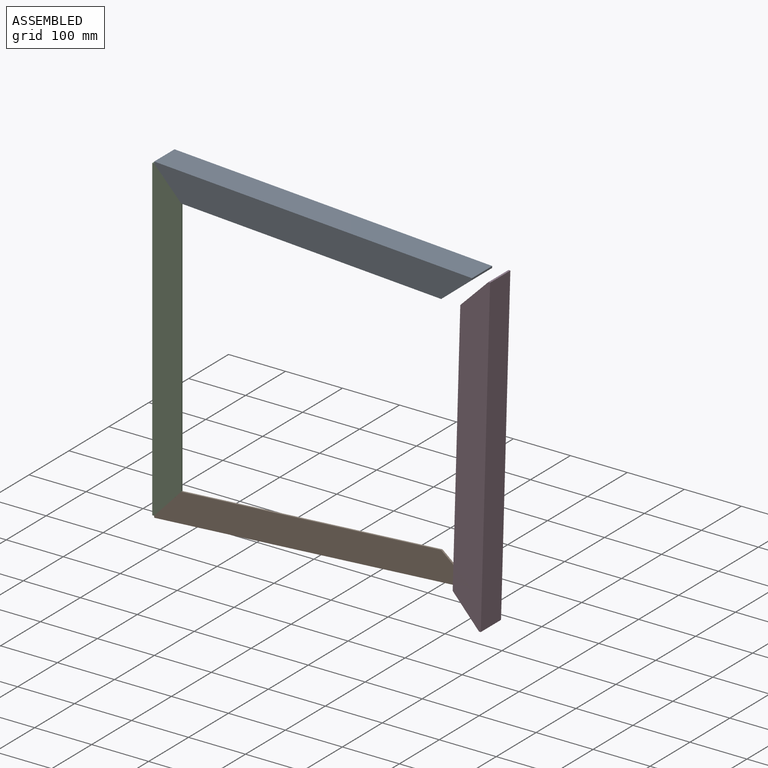
[diagram: assembled view]
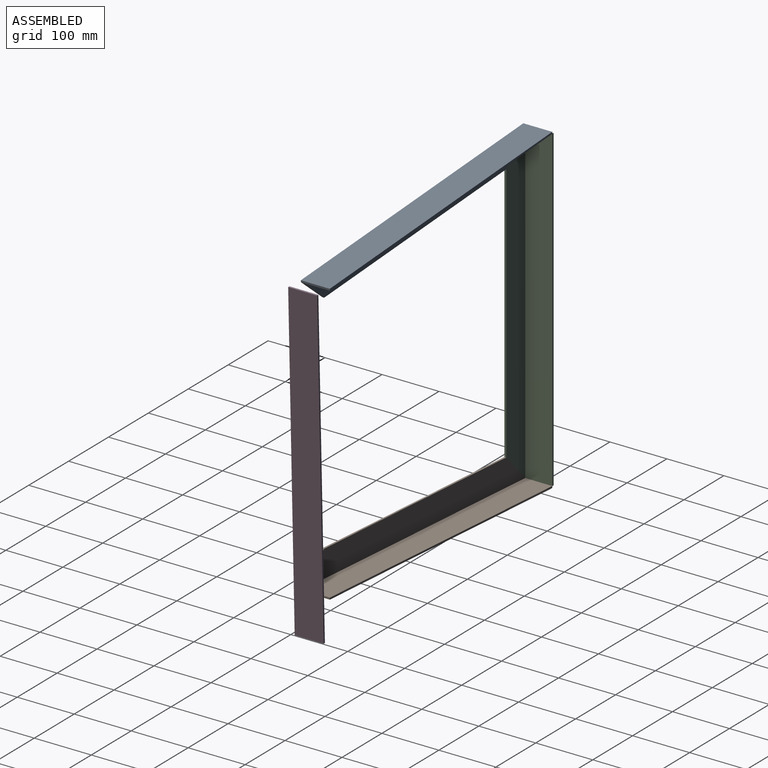
[diagram: assembled view, second angle]
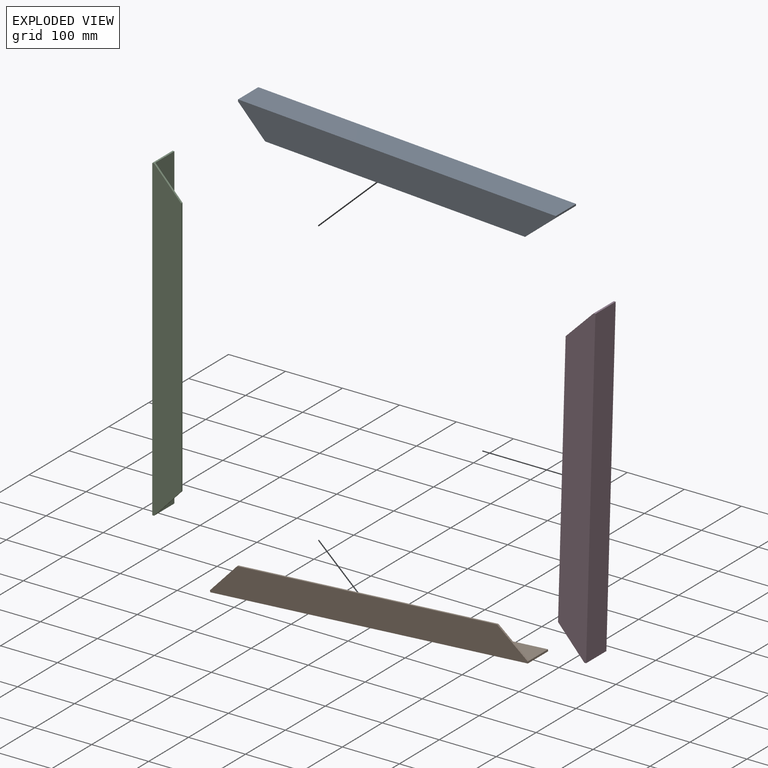
[diagram: exploded view]
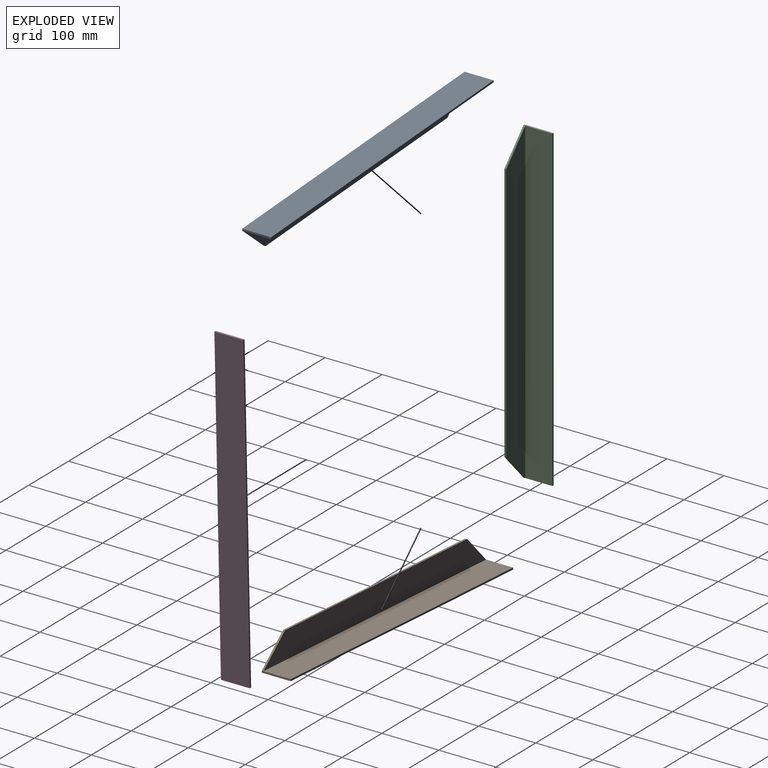
[diagram: exploded view, second angle]
ASSEMBLY  parts=4 mates=2
PART A: 10 faces, bbox 50.8x50.8x558.8 mm
  f0: plane 457.2x3.18mm, normal (1,0,0), area 1451.6mm2, adj f1,f4,f8,f9
  f1: plane 558.8x47.63mm, normal (0,1,0), area 24193.5mm2, adj f0,f7,f8,f9
  f2: plane 50.8x3.18mm, normal (0,0,1), area 161.3mm2, adj f4,f5,f6,f7,f9
  f3: plane 50.8x3.18mm, normal (0,0,-1), area 161.3mm2, adj f4,f5,f6,f7,f8
  f4: plane 558.8x50.8mm, normal (0,-1,0), area 25967.7mm2, adj f0,f2,f3,f6,f8,f9
  f5: plane 558.8x3.18mm, normal (0,1,0), area 1774.2mm2, adj f2,f3,f6,f7
  f6: plane 558.8x50.8mm, normal (-1,0,0), area 28387mm2, adj f2,f3,f4,f5
  f7: plane 558.8x47.63mm, normal (1,0,0), area 26612.8mm2, adj f1,f2,f3,f5
  f8: plane 50.8x47.63mm, normal (0.73,0,-0.68), area 221.1mm2, adj f0,f1,f3,f4
  f9: plane 50.8x47.63mm, normal (0.73,0,0.68), area 221.1mm2, adj f0,f1,f2,f4
PART B: same geometry as A
PART C: same geometry as A
PART D: same geometry as A
PLACE A rot(axis=(0,1,0),93.7deg) t=(184.91,0,521.46)mm
PLACE B rot(axis=(0,-1,0),93.7deg) t=(691.86,0,-1.33)mm
PLACE C t=(159.57,0,-10.31)mm fixed
PLACE D rot(axis=(0,-1,0),178.3deg) t=(745.32,0,466.26)mm
MATE fastened B.f9 <-> C.f8  axis (-0.73,0,0.68) through (183.38,1.59,-10.31)mm
MATE fastened A.f8 <-> C.f9  axis (-0.73,0,-0.68) through (183.38,1.59,497.69)mm
